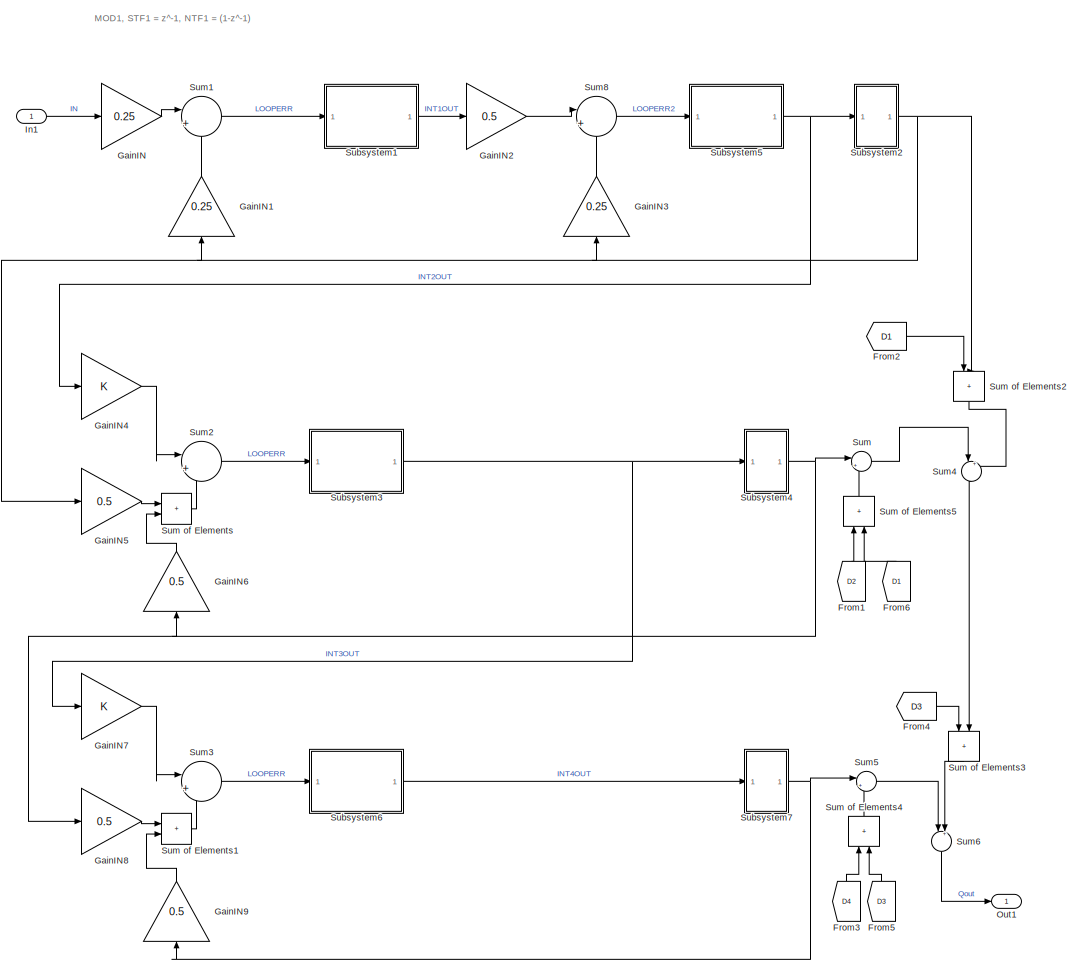
[diagram: root canvas - part 1/2, center side, full height]
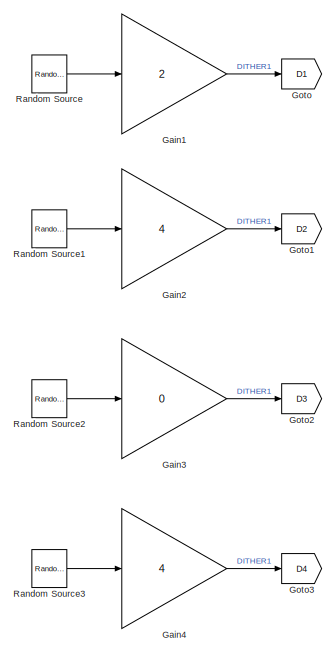
[diagram: root canvas - part 2/2, middle left region]
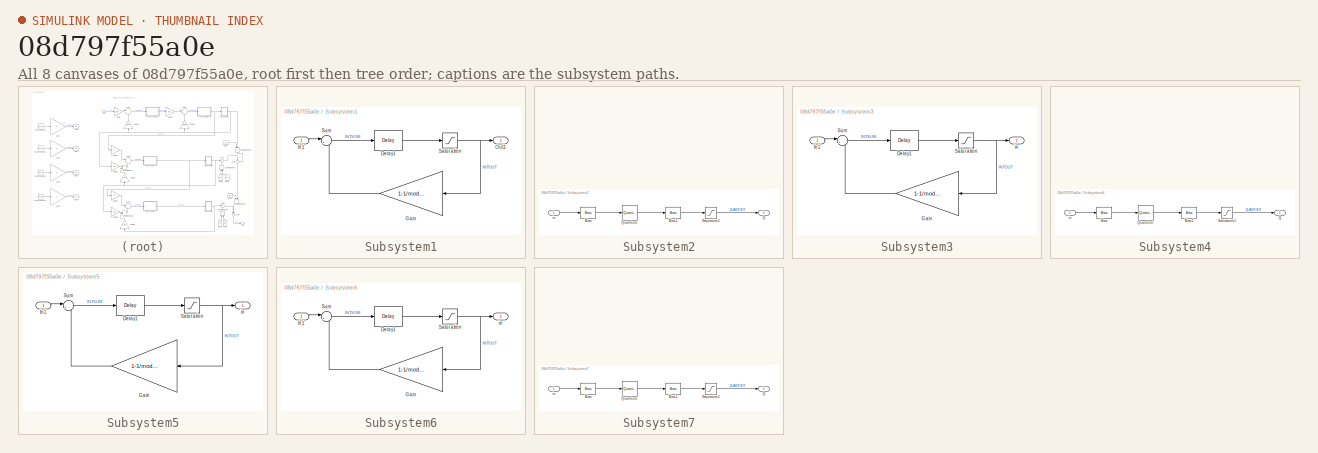
[diagram: thumbnail index - all 8 canvases of the model, root first then tree order]
MODEL slx_08d797f55a0e
KIND model
CONFIG AbsTol = auto
CONFIG EnableMultiTasking = off
CONFIG FixedStep = auto
CONFIG MaxStep = auto
CONFIG MinStep = auto
CONFIG RelTol = 1e-3
CONFIG SampleTimeConstraint = Unconstrained
CONFIG SolverName = FixedStepAuto
CONFIG StartTime = 0.0
CONFIG StopTime = 10.0
BLOCK [From] From1
  GotoTag = D2
  NameLocation = right
BLOCK [From] From2
  GotoTag = D1
BLOCK [From] From3
  GotoTag = D4
  NameLocation = right
BLOCK [From] From4
  GotoTag = D3
BLOCK [From] From5
  GotoTag = D3
  NameLocation = right
BLOCK [From] From6
  GotoTag = D1
  NameLocation = right
BLOCK [Gain] Gain1
  AttributesFormatString = Dither level adjust
  Gain = 2
BLOCK [Gain] Gain2
  AttributesFormatString = Dither level adjust
  Gain = 4
BLOCK [Gain] Gain3
  AttributesFormatString = Dither level adjust
  Gain = 0
BLOCK [Gain] Gain4
  AttributesFormatString = Dither level adjust
  Gain = 4
BLOCK [Gain] GainIN
  Gain = 0.25
BLOCK [Gain] GainIN1
  Gain = 0.25
  NameLocation = right
BLOCK [Gain] GainIN2
  Gain = 0.5
  NameLocation = top
BLOCK [Gain] GainIN3
  Gain = 0.25
  NameLocation = right
BLOCK [Gain] GainIN4
BLOCK [Gain] GainIN5
  Gain = 0.5
BLOCK [Gain] GainIN6
  Gain = 0.5
  NameLocation = right
BLOCK [Gain] GainIN7
BLOCK [Gain] GainIN8
  Gain = 0.5
BLOCK [Gain] GainIN9
  Gain = 0.5
  NameLocation = right
BLOCK [Goto] Goto
  GotoTag = D1
BLOCK [Goto] Goto1
  GotoTag = D2
BLOCK [Goto] Goto2
  GotoTag = D3
BLOCK [Goto] Goto3
  GotoTag = D4
BLOCK [Inport] In1
BLOCK [Outport] Out1
  SignalName = Out
BLOCK [Reference] Random Source  REF=dspsrcs4/Random
Source
  AttributesFormatString = Dither source
  Ports = [0, 1]
  SourceBlock = dspsrcs4/Random\nSource
  SourceProductBaseCode = DS
  SourceType = Random Source
  UserDataPersistent = on
BLOCK [Reference] Random Source1  REF=dspsrcs4/Random
Source
  AttributesFormatString = Dither source
  Ports = [0, 1]
  SourceBlock = dspsrcs4/Random\nSource
  SourceProductBaseCode = DS
  SourceType = Random Source
  UserDataPersistent = on
BLOCK [Reference] Random Source2  REF=dspsrcs4/Random
Source
  AttributesFormatString = Dither source
  Ports = [0, 1]
  SourceBlock = dspsrcs4/Random\nSource
  SourceProductBaseCode = DS
  SourceType = Random Source
  UserDataPersistent = on
BLOCK [Reference] Random Source3  REF=dspsrcs4/Random
Source
  AttributesFormatString = Dither source
  Ports = [0, 1]
  SourceBlock = dspsrcs4/Random\nSource
  SourceProductBaseCode = DS
  SourceType = Random Source
  UserDataPersistent = on
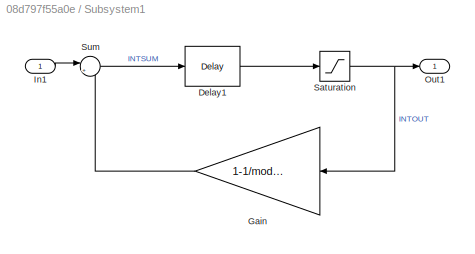
BLOCK [SubSystem] Subsystem1
  AttributesFormatString = Leaky delaying int
  Ports = [1, 1]
  RequestExecContextInheritance = off
BLOCK [Delay] Subsystem1/Delay1
  DelayLength = 1
  InitialCondition = 0
  InputPortMap = u0
  Ports = [1, 1]
  UserDataPersistent = on
BLOCK [Gain] Subsystem1/Gain
  AttributesFormatString = Integrator leakage
  Gain = 1-1/modctrl.igain1
BLOCK [Inport] Subsystem1/In1
BLOCK [Outport] Subsystem1/Out1
BLOCK [Saturate] Subsystem1/Saturation
  LowerLimit = -(modctrl.isat1)
  NameLocation = top
  UpperLimit = modctrl.isat1
BLOCK [Sum] Subsystem1/Sum
  AttributesFormatString = Integrator summer
  Inputs = |++
  NameLocation = top
  Ports = [2, 1]
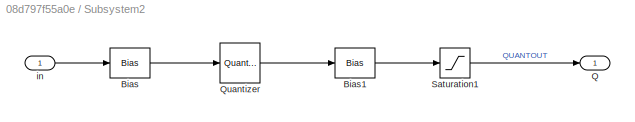
BLOCK [SubSystem] Subsystem2
  AttributesFormatString = 2-bit quantiser
  Ports = [1, 1]
  RequestExecContextInheritance = off
BLOCK [Bias] Subsystem2/Bias
  AttributesFormatString = Need offset to give\nMID-RISE quantiser
  Bias = 1/3
  SaturateOnIntegerOverflow = off
BLOCK [Bias] Subsystem2/Bias1
  Bias = -1/3
  SaturateOnIntegerOverflow = off
BLOCK [Outport] Subsystem2/Q
BLOCK [Quantizer] Subsystem2/Quantizer
  LinearizeAsGain = off
  NameLocation = top
  QuantizationInterval = 2/3
BLOCK [Saturate] Subsystem2/Saturation1
  AttributesFormatString = Limit quantiser\noutput to +/-1
  LowerLimit = -1
  UpperLimit = 1
BLOCK [Inport] Subsystem2/in
BLOCK [SubSystem] Subsystem3
  AttributesFormatString = Leaky delaying int
  Ports = [1, 1]
  RequestExecContextInheritance = off
BLOCK [Delay] Subsystem3/Delay1
  DelayLength = 1
  InitialCondition = 0
  InputPortMap = u0
  Ports = [1, 1]
  UserDataPersistent = on
BLOCK [Gain] Subsystem3/Gain
  AttributesFormatString = Integrator leakage
  Gain = 1-1/modctrl.igain1
BLOCK [Inport] Subsystem3/In1
BLOCK [Saturate] Subsystem3/Saturation
  LowerLimit = -(modctrl.isat1)
  NameLocation = top
  UpperLimit = modctrl.isat1
BLOCK [Sum] Subsystem3/Sum
  AttributesFormatString = Integrator summer
  Inputs = |++
  NameLocation = top
  Ports = [2, 1]
BLOCK [Outport] Subsystem3/in
BLOCK [SubSystem] Subsystem4
  AttributesFormatString = 2-bit quantiser
  Ports = [1, 1]
  RequestExecContextInheritance = off
BLOCK [Bias] Subsystem4/Bias
  AttributesFormatString = Need offset to give\nMID-RISE quantiser
  Bias = 1/3
  SaturateOnIntegerOverflow = off
BLOCK [Bias] Subsystem4/Bias1
  Bias = -1/3
  SaturateOnIntegerOverflow = off
BLOCK [Outport] Subsystem4/Q
BLOCK [Quantizer] Subsystem4/Quantizer
  LinearizeAsGain = off
  NameLocation = top
  QuantizationInterval = 2/3
BLOCK [Saturate] Subsystem4/Saturation1
  AttributesFormatString = Limit quantiser\noutput to +/-1
  LowerLimit = -1
  UpperLimit = 1
BLOCK [Inport] Subsystem4/in
BLOCK [SubSystem] Subsystem5
  AttributesFormatString = Leaky delaying int
  Ports = [1, 1]
  RequestExecContextInheritance = off
BLOCK [Delay] Subsystem5/Delay1
  DelayLength = 1
  InitialCondition = 0
  InputPortMap = u0
  Ports = [1, 1]
  UserDataPersistent = on
BLOCK [Gain] Subsystem5/Gain
  AttributesFormatString = Integrator leakage
  Gain = 1-1/modctrl.igain2
BLOCK [Inport] Subsystem5/In1
BLOCK [Saturate] Subsystem5/Saturation
  LowerLimit = -(modctrl.isat2)
  NameLocation = top
  UpperLimit = modctrl.isat2
BLOCK [Sum] Subsystem5/Sum
  AttributesFormatString = Integrator summer
  Inputs = |++
  NameLocation = top
  Ports = [2, 1]
BLOCK [Outport] Subsystem5/in
BLOCK [SubSystem] Subsystem6
  AttributesFormatString = Leaky delaying int
  Ports = [1, 1]
  RequestExecContextInheritance = off
BLOCK [Delay] Subsystem6/Delay1
  DelayLength = 1
  InitialCondition = 0
  InputPortMap = u0
  Ports = [1, 1]
  UserDataPersistent = on
BLOCK [Gain] Subsystem6/Gain
  AttributesFormatString = Integrator leakage
  Gain = 1-1/modctrl.igain1
BLOCK [Inport] Subsystem6/In1
BLOCK [Saturate] Subsystem6/Saturation
  LowerLimit = -(modctrl.isat1)
  NameLocation = top
  UpperLimit = modctrl.isat1
BLOCK [Sum] Subsystem6/Sum
  AttributesFormatString = Integrator summer
  Inputs = |++
  NameLocation = top
  Ports = [2, 1]
BLOCK [Outport] Subsystem6/in
BLOCK [SubSystem] Subsystem7
  AttributesFormatString = 2-bit quantiser
  Ports = [1, 1]
  RequestExecContextInheritance = off
BLOCK [Bias] Subsystem7/Bias
  AttributesFormatString = Need offset to give\nMID-RISE quantiser
  Bias = 1/3
  SaturateOnIntegerOverflow = off
BLOCK [Bias] Subsystem7/Bias1
  Bias = -1/3
  SaturateOnIntegerOverflow = off
BLOCK [Outport] Subsystem7/Q
BLOCK [Quantizer] Subsystem7/Quantizer
  LinearizeAsGain = off
  NameLocation = top
  QuantizationInterval = 2/3
BLOCK [Saturate] Subsystem7/Saturation1
  AttributesFormatString = Limit quantiser\noutput to +/-1
  LowerLimit = -1
  UpperLimit = 1
BLOCK [Inport] Subsystem7/in
BLOCK [Sum] Sum
  Inputs = |++
  Ports = [2, 1]
BLOCK [Sum] Sum of Elements
  IconShape = rectangular
  Ports = [2, 1]
BLOCK [Sum] Sum of Elements1
  IconShape = rectangular
  Ports = [2, 1]
BLOCK [Sum] Sum of Elements2
  IconShape = rectangular
  NameLocation = left
  Ports = [2, 1]
BLOCK [Sum] Sum of Elements3
  IconShape = rectangular
  NameLocation = left
  Ports = [2, 1]
BLOCK [Sum] Sum of Elements4
  IconShape = rectangular
  NameLocation = left
  Ports = [2, 1]
BLOCK [Sum] Sum of Elements5
  IconShape = rectangular
  NameLocation = left
  Ports = [2, 1]
BLOCK [Sum] Sum1
  AttributesFormatString = Modulator input\nloop servo error (input - fbk)
  Inputs = |+-
  NameLocation = top
  Ports = [2, 1]
BLOCK [Sum] Sum2
  AttributesFormatString = Modulator input\nloop servo error (input - fbk)
  Inputs = |+-
  NameLocation = top
  Ports = [2, 1]
BLOCK [Sum] Sum3
  AttributesFormatString = Modulator input\nloop servo error (input - fbk)
  Inputs = |+-
  NameLocation = top
  Ports = [2, 1]
BLOCK [Sum] Sum4
  Inputs = |++
  NameLocation = left
  Ports = [2, 1]
BLOCK [Sum] Sum5
  Inputs = |++
  Ports = [2, 1]
BLOCK [Sum] Sum6
  Inputs = |++
  NameLocation = left
  Ports = [2, 1]
BLOCK [Sum] Sum8
  AttributesFormatString = Modulator input\nloop servo error (input - fbk)
  Inputs = |+-
  NameLocation = top
  Ports = [2, 1]
ANNOTATION (root): MOD1, STF1 = z^-1, NTF1 = (1-z^-1)
LINE From1:1 -> Sum of Elements5:1
LINE From2:1 -> Sum of Elements2:1
LINE From3:1 -> Sum of Elements4:1
LINE From4:1 -> Sum of Elements3:1
LINE From5:1 -> Sum of Elements4:2
LINE From6:1 -> Sum of Elements5:2
LINE Gain1:1 -> Goto:1
LINE Gain2:1 -> Goto1:1
LINE Gain3:1 -> Goto2:1
LINE Gain4:1 -> Goto3:1
LINE GainIN1:1 -> Sum1:2
LINE GainIN2:1 -> Sum8:1
LINE GainIN3:1 -> Sum8:2
LINE GainIN4:1 -> Sum2:1
LINE GainIN5:1 -> Sum of Elements:1
LINE GainIN6:1 -> Sum of Elements:2
LINE GainIN7:1 -> Sum3:1
LINE GainIN8:1 -> Sum of Elements1:1
LINE GainIN9:1 -> Sum of Elements1:2
LINE GainIN:1 -> Sum1:1
LINE In1:1 -> GainIN:1
LINE Random Source1:1 -> Gain2:1
LINE Random Source2:1 -> Gain3:1
LINE Random Source3:1 -> Gain4:1
LINE Random Source:1 -> Gain1:1
LINE Subsystem1/Delay1:1 -> Subsystem1/Saturation:1
LINE Subsystem1/Gain:1 -> Subsystem1/Sum:2
LINE Subsystem1/In1:1 -> Subsystem1/Sum:1
NET Subsystem1/Saturation:1 -> Subsystem1/Gain:1, Subsystem1/Out1:1
LINE Subsystem1/Sum:1 -> Subsystem1/Delay1:1
LINE Subsystem1:1 -> GainIN2:1
LINE Subsystem2/Bias1:1 -> Subsystem2/Saturation1:1
LINE Subsystem2/Bias:1 -> Subsystem2/Quantizer:1
LINE Subsystem2/Quantizer:1 -> Subsystem2/Bias1:1
LINE Subsystem2/Saturation1:1 -> Subsystem2/Q:1
LINE Subsystem2/in:1 -> Subsystem2/Bias:1
NET Subsystem2:1 -> GainIN1:1, GainIN3:1, GainIN5:1, Sum of Elements2:2
LINE Subsystem3/Delay1:1 -> Subsystem3/Saturation:1
LINE Subsystem3/Gain:1 -> Subsystem3/Sum:2
LINE Subsystem3/In1:1 -> Subsystem3/Sum:1
NET Subsystem3/Saturation:1 -> Subsystem3/Gain:1, Subsystem3/in:1
LINE Subsystem3/Sum:1 -> Subsystem3/Delay1:1
NET Subsystem3:1 -> GainIN7:1, Subsystem4:1
LINE Subsystem4/Bias1:1 -> Subsystem4/Saturation1:1
LINE Subsystem4/Bias:1 -> Subsystem4/Quantizer:1
LINE Subsystem4/Quantizer:1 -> Subsystem4/Bias1:1
LINE Subsystem4/Saturation1:1 -> Subsystem4/Q:1
LINE Subsystem4/in:1 -> Subsystem4/Bias:1
NET Subsystem4:1 -> GainIN6:1, GainIN8:1, Sum:1
LINE Subsystem5/Delay1:1 -> Subsystem5/Saturation:1
LINE Subsystem5/Gain:1 -> Subsystem5/Sum:2
LINE Subsystem5/In1:1 -> Subsystem5/Sum:1
NET Subsystem5/Saturation:1 -> Subsystem5/Gain:1, Subsystem5/in:1
LINE Subsystem5/Sum:1 -> Subsystem5/Delay1:1
NET Subsystem5:1 -> GainIN4:1, Subsystem2:1
LINE Subsystem6/Delay1:1 -> Subsystem6/Saturation:1
LINE Subsystem6/Gain:1 -> Subsystem6/Sum:2
LINE Subsystem6/In1:1 -> Subsystem6/Sum:1
NET Subsystem6/Saturation:1 -> Subsystem6/Gain:1, Subsystem6/in:1
LINE Subsystem6/Sum:1 -> Subsystem6/Delay1:1
LINE Subsystem6:1 -> Subsystem7:1
LINE Subsystem7/Bias1:1 -> Subsystem7/Saturation1:1
LINE Subsystem7/Bias:1 -> Subsystem7/Quantizer:1
LINE Subsystem7/Quantizer:1 -> Subsystem7/Bias1:1
LINE Subsystem7/Saturation1:1 -> Subsystem7/Q:1
LINE Subsystem7/in:1 -> Subsystem7/Bias:1
NET Subsystem7:1 -> GainIN9:1, Sum5:1
LINE Sum of Elements1:1 -> Sum3:2
LINE Sum of Elements2:1 -> Sum4:2
LINE Sum of Elements3:1 -> Sum6:2
LINE Sum of Elements4:1 -> Sum5:2
LINE Sum of Elements5:1 -> Sum:2
LINE Sum of Elements:1 -> Sum2:2
LINE Sum1:1 -> Subsystem1:1
LINE Sum2:1 -> Subsystem3:1
LINE Sum3:1 -> Subsystem6:1
LINE Sum4:1 -> Sum of Elements3:2
LINE Sum5:1 -> Sum6:1
LINE Sum6:1 -> Out1:1
LINE Sum8:1 -> Subsystem5:1
LINE Sum:1 -> Sum4:1
note: NET lines group one-source signal fan-out (src -> all destinations, sorted); 1:1 wires keep LINE
